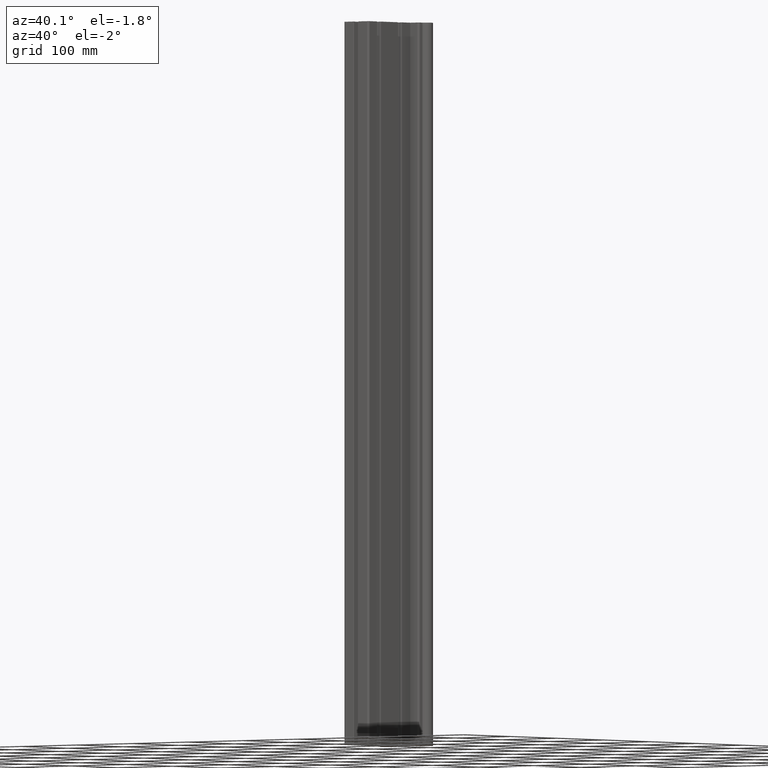
[diagram: clean part render]
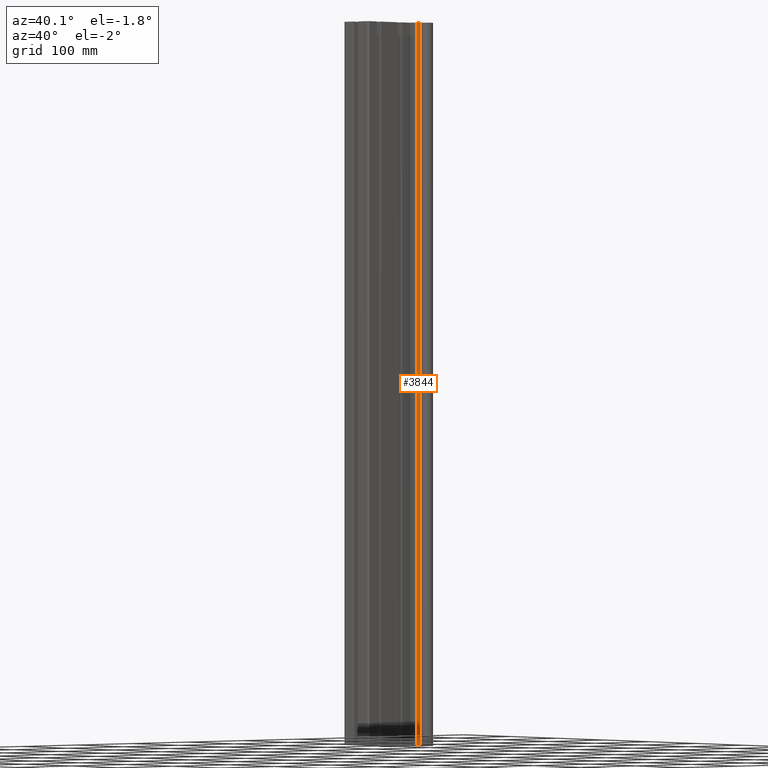
[diagram: same view with one face highlighted and labeled with its STEP entity id]
A machine part, auxiliary view. The second image highlights one B-rep face of the part: STEP entity #3844.
In plain terms, the highlighted cylindrical surface (edge-blend (fillet) strip) has radius 3 mm, axis along (0, 0, 1).
Its self-contained STEP definition (entity closure, byte-faithful):
#290=FACE_OUTER_BOUND('',#491,.T.);
#491=EDGE_LOOP('',(#3278,#3279,#3280,#3281));
#653=CIRCLE('',#4109,3.);
#747=CIRCLE('',#4332,3.);
#1067=LINE('',#6660,#1406);
#1068=LINE('',#6664,#1407);
#1406=VECTOR('',#5477,10.);
#1407=VECTOR('',#5482,10.);
#1654=VERTEX_POINT('',#6108);
#1655=VERTEX_POINT('',#6110);
#1801=VERTEX_POINT('',#6658);
#1802=VERTEX_POINT('',#6662);
#2082=EDGE_CURVE('',#1654,#1655,#653,.T.);
#2357=EDGE_CURVE('',#1801,#1654,#1067,.T.);
#2358=EDGE_CURVE('',#1802,#1801,#747,.T.);
#2359=EDGE_CURVE('',#1802,#1655,#1068,.T.);
#3278=ORIENTED_EDGE('',*,*,#2357,.F.);
#3279=ORIENTED_EDGE('',*,*,#2358,.F.);
#3280=ORIENTED_EDGE('',*,*,#2359,.T.);
#3281=ORIENTED_EDGE('',*,*,#2082,.F.);
#3662=CYLINDRICAL_SURFACE('',#4331,3.);
#3844=ADVANCED_FACE('',(#290),#3662,.T.);
#4109=AXIS2_PLACEMENT_3D('',#6111,#4852,#4853);
#4331=AXIS2_PLACEMENT_3D('',#6661,#5478,#5479);
#4332=AXIS2_PLACEMENT_3D('',#6663,#5480,#5481);
#4852=DIRECTION('center_axis',(0.,0.,-1.));
#4853=DIRECTION('ref_axis',(0.,1.,0.));
#5477=DIRECTION('',(0.,0.,-1.));
#5478=DIRECTION('center_axis',(0.,0.,1.));
#5479=DIRECTION('ref_axis',(0.,1.,0.));
#5480=DIRECTION('center_axis',(0.,0.,1.));
#5481=DIRECTION('ref_axis',(0.,1.,0.));
#5482=DIRECTION('',(0.,0.,-1.));
#6108=CARTESIAN_POINT('',(37.5000031961005,93.0000001169871,-500.));
#6110=CARTESIAN_POINT('',(34.5000031961005,90.0000001169871,-500.));
#6111=CARTESIAN_POINT('Origin',(34.5000031961005,93.0000001169871,-500.));
#6658=CARTESIAN_POINT('',(37.5000031961005,93.0000001169871,500.));
#6660=CARTESIAN_POINT('',(37.5000031961005,93.0000001169871,0.));
#6661=CARTESIAN_POINT('Origin',(34.5000031961005,93.0000001169871,0.));
#6662=CARTESIAN_POINT('',(34.5000031961005,90.0000001169871,500.));
#6663=CARTESIAN_POINT('Origin',(34.5000031961005,93.0000001169871,500.));
#6664=CARTESIAN_POINT('',(34.5000031961005,90.0000001169871,0.));